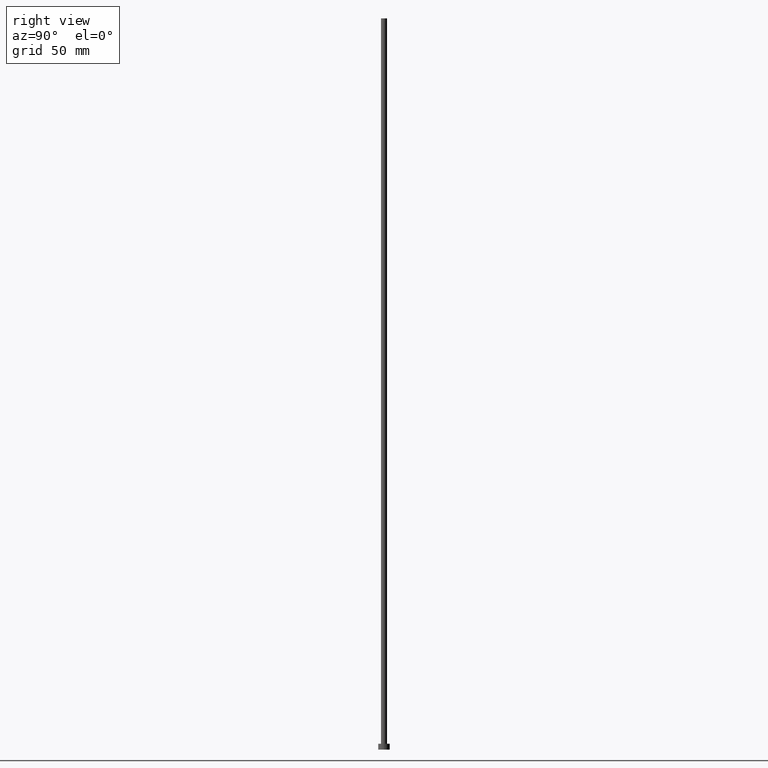
[diagram: clean part render]
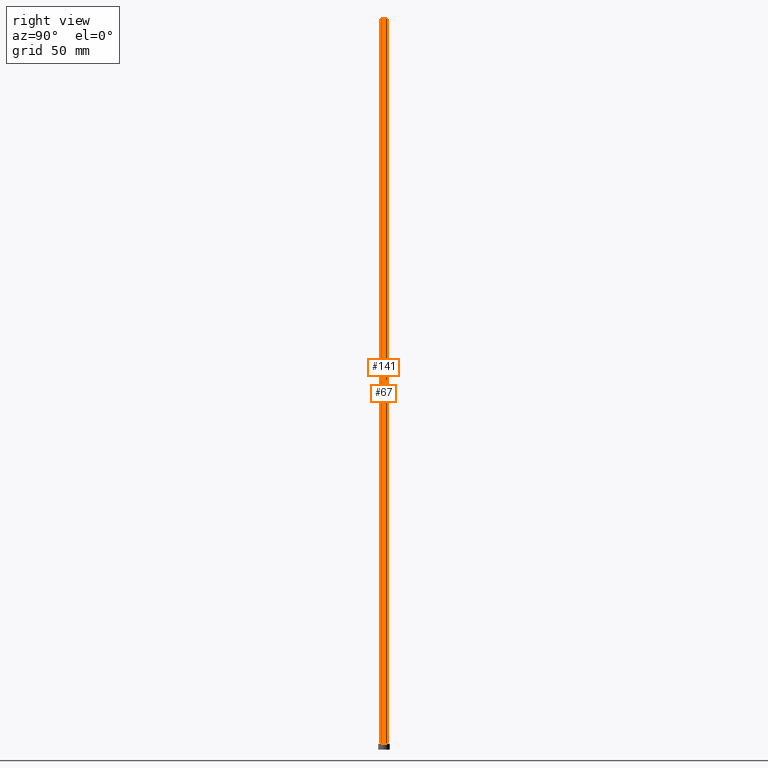
[diagram: same view with one multi-face feature highlighted, each face labeled with its STEP entity id]
A machine part, right view. The highlighted faces form ONE feature: a constant-radius fillet chain: 2 tangent blend faces with common blend radius 2.1 mm. The faces share edges in the B-rep.
Their STEP definitions:
[1] entity #67 (Cylinder):
#1 = CARTESIAN_POINT ( 'NONE',  ( 0.000000000000000000, 0.000000000000000000, 4.000000000000000000 ) ) ;
#15 = CARTESIAN_POINT ( 'NONE',  ( 0.000000000000000000, 0.000000000000000000, 500.0000000000000000 ) ) ;
#19 = DIRECTION ( 'NONE',  ( -1.000000000000000000, 0.000000000000000000, 0.000000000000000000 ) ) ;
#26 = EDGE_CURVE ( 'NONE', #65, #157, #182, .T. ) ;
#38 = EDGE_CURVE ( 'NONE', #123, #157, #129, .T. ) ;
#43 = CARTESIAN_POINT ( 'NONE',  ( 2.100000000000000089, 2.571758278209441957E-16, 500.0000000000000000 ) ) ;
#53 = CARTESIAN_POINT ( 'NONE',  ( 2.100000000000000089, 2.571758278209441957E-16, 4.000000000000000000 ) ) ;
#55 = ORIENTED_EDGE ( 'NONE', *, *, #121, .F. ) ;
#57 = CIRCLE ( 'NONE', #214, 2.100000000000000089 ) ;
#63 = VECTOR ( 'NONE', #107, 1000.000000000000000 ) ;
#65 = VERTEX_POINT ( 'NONE', #53 ) ;
#67 = ADVANCED_FACE ( 'NONE', ( #222 ), #97, .T. ) ;
#75 = DIRECTION ( 'NONE',  ( 0.000000000000000000, 0.000000000000000000, 1.000000000000000000 ) ) ;
#87 = ORIENTED_EDGE ( 'NONE', *, *, #26, .T. ) ;
#89 = DIRECTION ( 'NONE',  ( -0.000000000000000000, -0.000000000000000000, -1.000000000000000000 ) ) ;
#94 = CARTESIAN_POINT ( 'NONE',  ( -2.100000000000000089, 0.000000000000000000, 500.0000000000000000 ) ) ;
#97 = CYLINDRICAL_SURFACE ( 'NONE', #111, 2.100000000000000089 ) ;
#101 = DIRECTION ( 'NONE',  ( 1.000000000000000000, 0.000000000000000000, 0.000000000000000000 ) ) ;
#106 = ORIENTED_EDGE ( 'NONE', *, *, #184, .T. ) ;
#107 = DIRECTION ( 'NONE',  ( -0.000000000000000000, -0.000000000000000000, -1.000000000000000000 ) ) ;
#111 = AXIS2_PLACEMENT_3D ( 'NONE', #15, #145, #19 ) ;
#121 = EDGE_CURVE ( 'NONE', #148, #123, #57, .T. ) ;
#123 = VERTEX_POINT ( 'NONE', #94 ) ;
#129 = LINE ( 'NONE', #134, #169 ) ;
#134 = CARTESIAN_POINT ( 'NONE',  ( -2.100000000000000089, 0.000000000000000000, 500.0000000000000000 ) ) ;
#139 = DIRECTION ( 'NONE',  ( 0.000000000000000000, 0.000000000000000000, 1.000000000000000000 ) ) ;
#145 = DIRECTION ( 'NONE',  ( -0.000000000000000000, -0.000000000000000000, -1.000000000000000000 ) ) ;
#148 = VERTEX_POINT ( 'NONE', #167 ) ;
#152 = CARTESIAN_POINT ( 'NONE',  ( -2.100000000000000089, 0.000000000000000000, 4.000000000000000000 ) ) ;
#154 = LINE ( 'NONE', #43, #63 ) ;
#157 = VERTEX_POINT ( 'NONE', #152 ) ;
#167 = CARTESIAN_POINT ( 'NONE',  ( 2.100000000000000089, 2.571758278209441957E-16, 500.0000000000000000 ) ) ;
#169 = VECTOR ( 'NONE', #89, 1000.000000000000000 ) ;
#182 = CIRCLE ( 'NONE', #216, 2.100000000000000089 ) ;
#184 = EDGE_CURVE ( 'NONE', #148, #65, #154, .T. ) ;
#206 = DIRECTION ( 'NONE',  ( 1.000000000000000000, 0.000000000000000000, 0.000000000000000000 ) ) ;
#214 = AXIS2_PLACEMENT_3D ( 'NONE', #239, #139, #206 ) ;
#216 = AXIS2_PLACEMENT_3D ( 'NONE', #1, #75, #101 ) ;
#222 = FACE_OUTER_BOUND ( 'NONE', #252, .T. ) ;
#239 = CARTESIAN_POINT ( 'NONE',  ( 0.000000000000000000, 0.000000000000000000, 500.0000000000000000 ) ) ;
#252 = EDGE_LOOP ( 'NONE', ( #55, #106, #87, #254 ) ) ;
#254 = ORIENTED_EDGE ( 'NONE', *, *, #38, .F. ) ;
[2] entity #141 (Cylinder):
#6 = AXIS2_PLACEMENT_3D ( 'NONE', #76, #153, #100 ) ;
#16 = EDGE_CURVE ( 'NONE', #123, #148, #115, .T. ) ;
#25 = CYLINDRICAL_SURFACE ( 'NONE', #6, 2.100000000000000089 ) ;
#33 = AXIS2_PLACEMENT_3D ( 'NONE', #146, #185, #188 ) ;
#38 = EDGE_CURVE ( 'NONE', #123, #157, #129, .T. ) ;
#41 = EDGE_LOOP ( 'NONE', ( #233, #127, #95, #144 ) ) ;
#43 = CARTESIAN_POINT ( 'NONE',  ( 2.100000000000000089, 2.571758278209441957E-16, 500.0000000000000000 ) ) ;
#47 = EDGE_CURVE ( 'NONE', #157, #65, #230, .T. ) ;
#53 = CARTESIAN_POINT ( 'NONE',  ( 2.100000000000000089, 2.571758278209441957E-16, 4.000000000000000000 ) ) ;
#60 = FACE_OUTER_BOUND ( 'NONE', #41, .T. ) ;
#63 = VECTOR ( 'NONE', #107, 1000.000000000000000 ) ;
#65 = VERTEX_POINT ( 'NONE', #53 ) ;
#76 = CARTESIAN_POINT ( 'NONE',  ( 0.000000000000000000, 0.000000000000000000, 500.0000000000000000 ) ) ;
#86 = DIRECTION ( 'NONE',  ( 0.000000000000000000, 0.000000000000000000, 1.000000000000000000 ) ) ;
#89 = DIRECTION ( 'NONE',  ( -0.000000000000000000, -0.000000000000000000, -1.000000000000000000 ) ) ;
#94 = CARTESIAN_POINT ( 'NONE',  ( -2.100000000000000089, 0.000000000000000000, 500.0000000000000000 ) ) ;
#95 = ORIENTED_EDGE ( 'NONE', *, *, #38, .T. ) ;
#100 = DIRECTION ( 'NONE',  ( -1.000000000000000000, 0.000000000000000000, 0.000000000000000000 ) ) ;
#107 = DIRECTION ( 'NONE',  ( -0.000000000000000000, -0.000000000000000000, -1.000000000000000000 ) ) ;
#115 = CIRCLE ( 'NONE', #33, 2.100000000000000089 ) ;
#122 = AXIS2_PLACEMENT_3D ( 'NONE', #248, #86, #183 ) ;
#123 = VERTEX_POINT ( 'NONE', #94 ) ;
#127 = ORIENTED_EDGE ( 'NONE', *, *, #16, .F. ) ;
#129 = LINE ( 'NONE', #134, #169 ) ;
#134 = CARTESIAN_POINT ( 'NONE',  ( -2.100000000000000089, 0.000000000000000000, 500.0000000000000000 ) ) ;
#141 = ADVANCED_FACE ( 'NONE', ( #60 ), #25, .T. ) ;
#144 = ORIENTED_EDGE ( 'NONE', *, *, #47, .T. ) ;
#146 = CARTESIAN_POINT ( 'NONE',  ( 0.000000000000000000, 0.000000000000000000, 500.0000000000000000 ) ) ;
#148 = VERTEX_POINT ( 'NONE', #167 ) ;
#152 = CARTESIAN_POINT ( 'NONE',  ( -2.100000000000000089, 0.000000000000000000, 4.000000000000000000 ) ) ;
#153 = DIRECTION ( 'NONE',  ( -0.000000000000000000, -0.000000000000000000, -1.000000000000000000 ) ) ;
#154 = LINE ( 'NONE', #43, #63 ) ;
#157 = VERTEX_POINT ( 'NONE', #152 ) ;
#167 = CARTESIAN_POINT ( 'NONE',  ( 2.100000000000000089, 2.571758278209441957E-16, 500.0000000000000000 ) ) ;
#169 = VECTOR ( 'NONE', #89, 1000.000000000000000 ) ;
#183 = DIRECTION ( 'NONE',  ( 1.000000000000000000, 0.000000000000000000, 0.000000000000000000 ) ) ;
#184 = EDGE_CURVE ( 'NONE', #148, #65, #154, .T. ) ;
#185 = DIRECTION ( 'NONE',  ( 0.000000000000000000, 0.000000000000000000, 1.000000000000000000 ) ) ;
#188 = DIRECTION ( 'NONE',  ( 1.000000000000000000, 0.000000000000000000, 0.000000000000000000 ) ) ;
#230 = CIRCLE ( 'NONE', #122, 2.100000000000000089 ) ;
#233 = ORIENTED_EDGE ( 'NONE', *, *, #184, .F. ) ;
#248 = CARTESIAN_POINT ( 'NONE',  ( 0.000000000000000000, 0.000000000000000000, 4.000000000000000000 ) ) ;